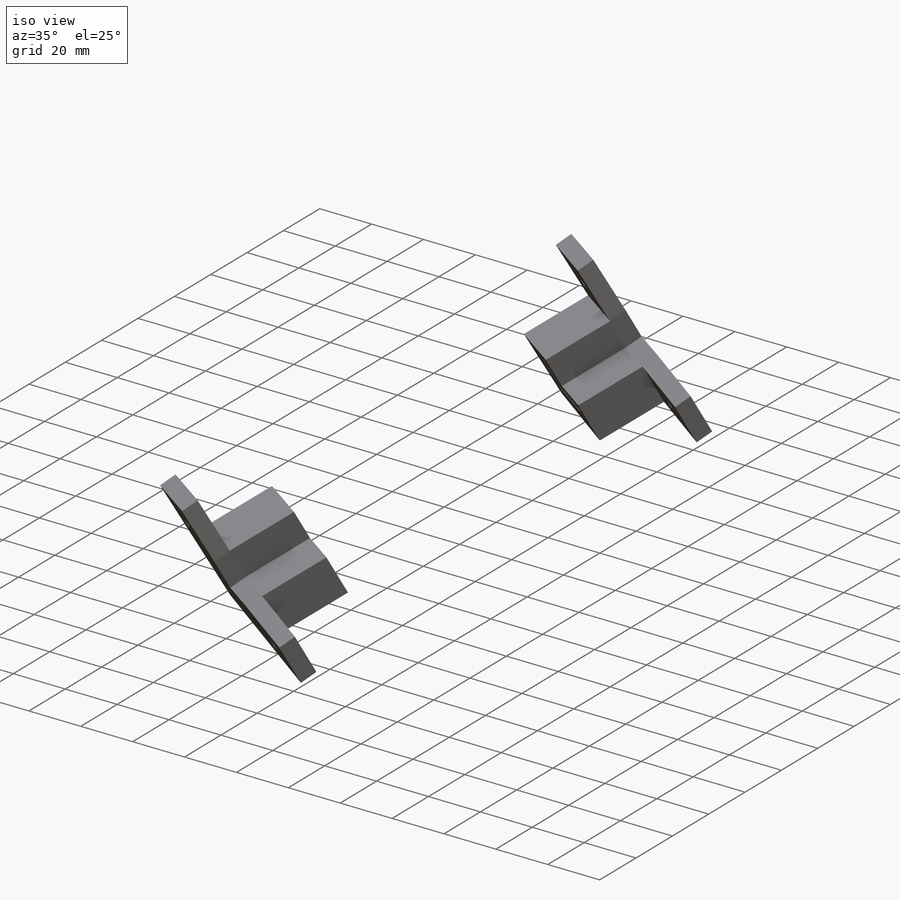
[diagram: iso view]
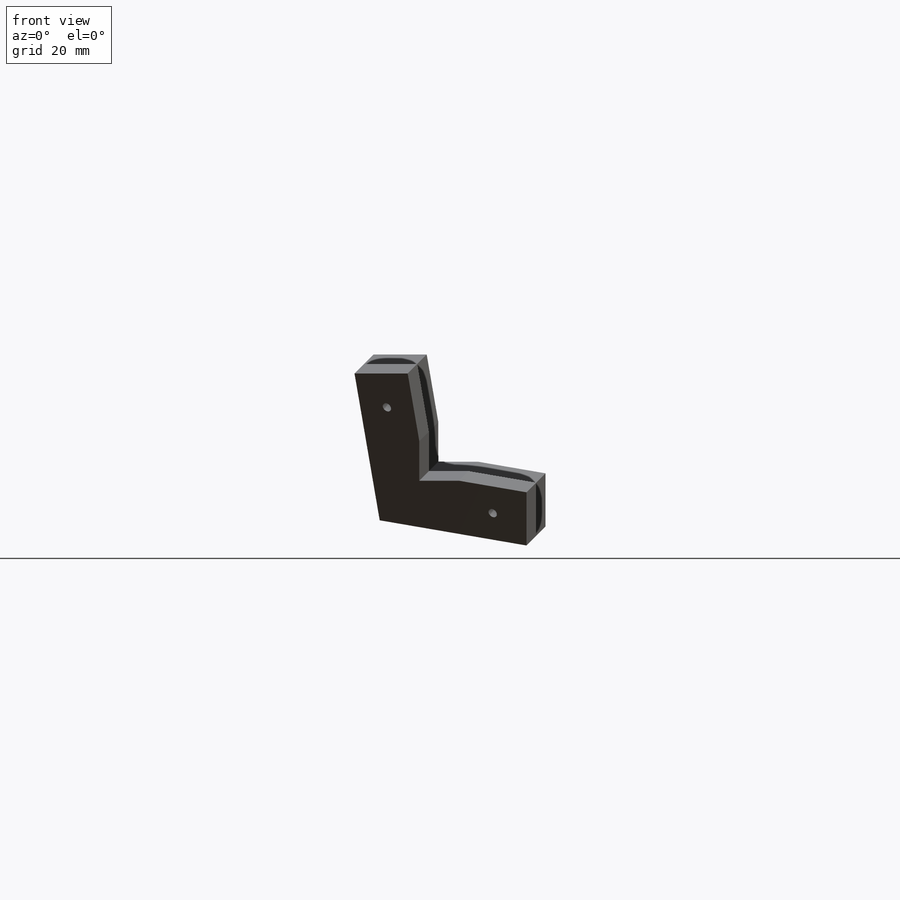
[diagram: front view]
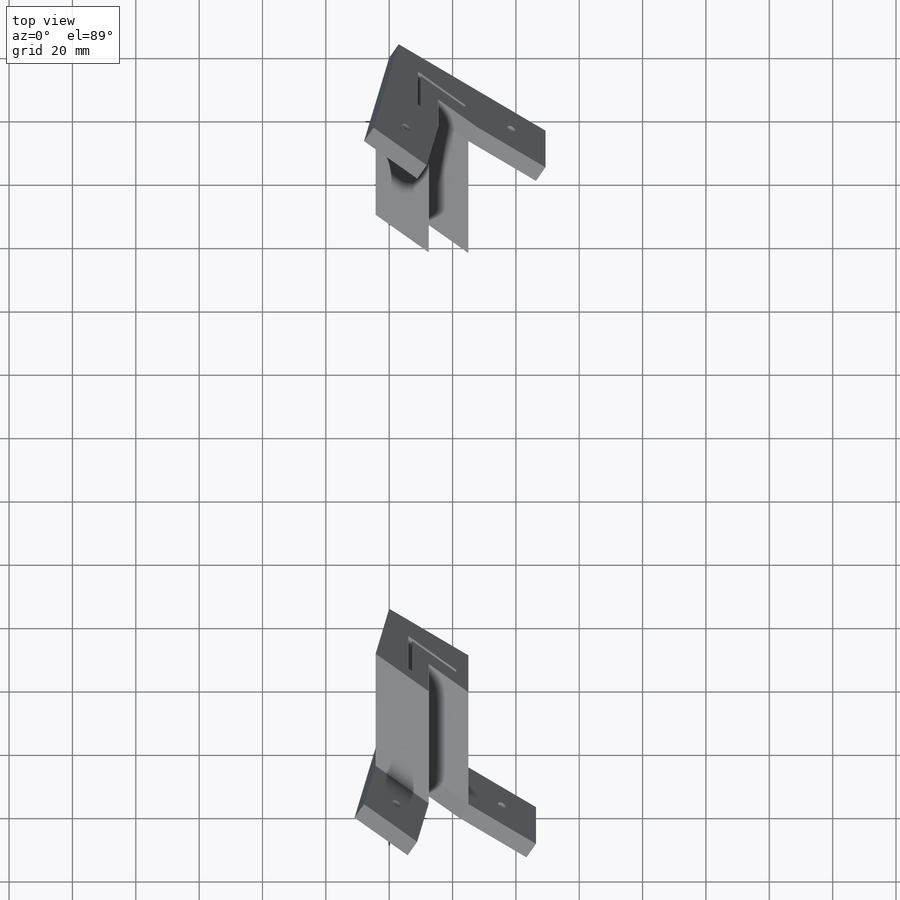
[diagram: top view]
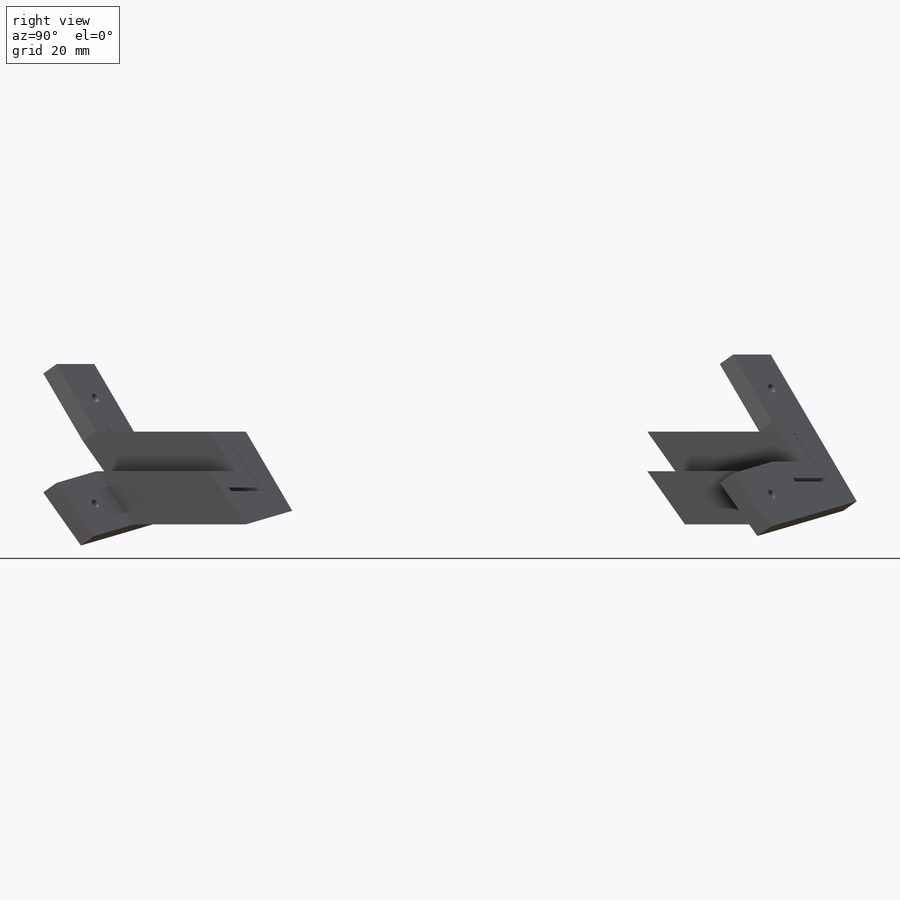
[diagram: right view]
SOLIDWORKS PART (.sldprt)
format: sldprt  version: not decoded by parser v0  size: 590,336 bytes
history: native  units: mm
features: sketch x19, cut_extrude x10, extrude x9, plane x7, material x1 (+10 scaffold rows collapsed)
feature tree (56):
  scaffold x10  (default folders/planes/origin — collapsed)
  material  "Материал <не указан>"
  plane  "Спереди"
  plane  "Сверху"
  plane  "Справа"
  sketch  "Эскиз1"  dims[D1=25.0mm D2=25.0mm D3=12.5mm D4=12.5mm]
  extrude  "Бобышка-Вытянуть1"  Depth=300mm
  sketch  "Эскиз2"  dims[D1=15.1mm D2=15.1mm D3=1.1mm D4=1.1mm]
  cut_extrude  "Вырез-Вытянуть1"  Depth=300mm
  plane  "Плоскость1"
  sketch  "Эскиз5"  dims[D1=~17.67767mm D2=17.68mm]
  cut_extrude  "Вырез-Вытянуть3"  [1 undecoded]
  sketch  "Эскиз7"  dims[c1.D1=~29.782008mm c2.D1=45.0deg c2.D2=~20.414209mm c3.D2=45.0deg]
  extrude  "Бобышка-Вытянуть2"  Depth=6mm
  sketch  "Эскиз8"
  extrude  "Бобышка-Вытянуть3"  Depth=300mm
  sketch  "Эскиз9"
  extrude  "Бобышка-Вытянуть4"  Depth=300mm
  plane  "Плоскость4"  Offset=154mm
  sketch  "Эскиз10"
  extrude  "Бобышка-Вытянуть5"  Depth=6mm
  sketch  "Эскиз11"
  extrude  "Бобышка-Вытянуть6"  Depth=25mm
  sketch  "Эскиз12"
  extrude  "Бобышка-Вытянуть7"  Depth=25mm
  sketch  "Эскиз13"
  extrude  "Бобышка-Вытянуть8"  Depth=25mm
  sketch  "Эскиз14"
  extrude  "Бобышка-Вытянуть9"  Depth=25mm
  plane  "Плоскость5"  Offset=31mm
  plane  "Плоскость6"  Offset=31mm
  sketch  "Эскиз16"  dims[D1=~2.96021mm]
  cut_extrude  "Вырез-Вытянуть4"  [1 undecoded]
  sketch  "Эскиз17"  dims[D1=~3.081388mm]
  cut_extrude  "Вырез-Вытянуть5"  [1 undecoded]
  sketch  "Эскиз18"  dims[D1=~2.278799mm]
  cut_extrude  "Вырез-Вытянуть6"  Depth=10mm
  sketch  "Эскиз19"  dims[D1=~1.969921mm]
  cut_extrude  "Вырез-Вытянуть7"  Depth=10mm
  sketch  "Эскиз20"  dims[D1=~1.971847mm]
  cut_extrude  "Вырез-Вытянуть8"  [1 undecoded]
  sketch  "Эскиз21"  dims[D1=~1.84087mm]
  cut_extrude  "Вырез-Вытянуть9"  [1 undecoded]
  sketch  "Эскиз22"  dims[D1=~2.788926mm]
  cut_extrude  "Вырез-Вытянуть10"  [1 undecoded]
  sketch  "Эскиз23"  dims[D1=~4.150697mm]
  cut_extrude  "Вырез-Вытянуть11"  [1 undecoded]
decode coverage: 24 of 38 modeling features carry decoded parameters
note: ~ marks probable driven/reference dimensions
note: 7 parameter values undecoded
summary: no parameter record found for 7 features
note: suppression state not decoded; provenance and decode notes live in map.json
